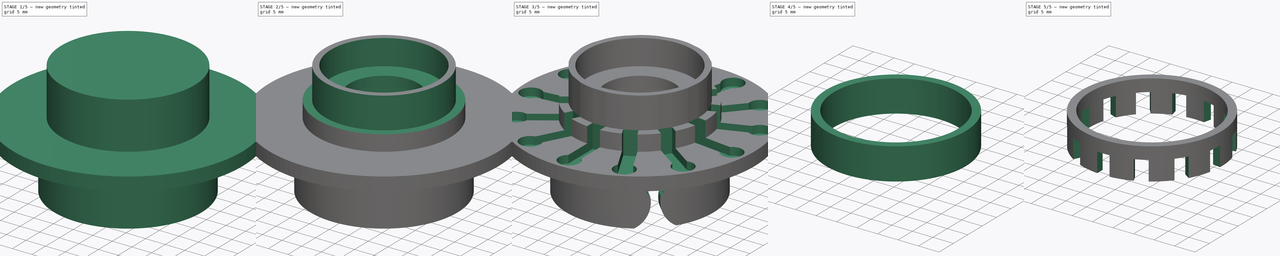
[diagram: build sequence overview — one tinted view per stage of 5, left to right]
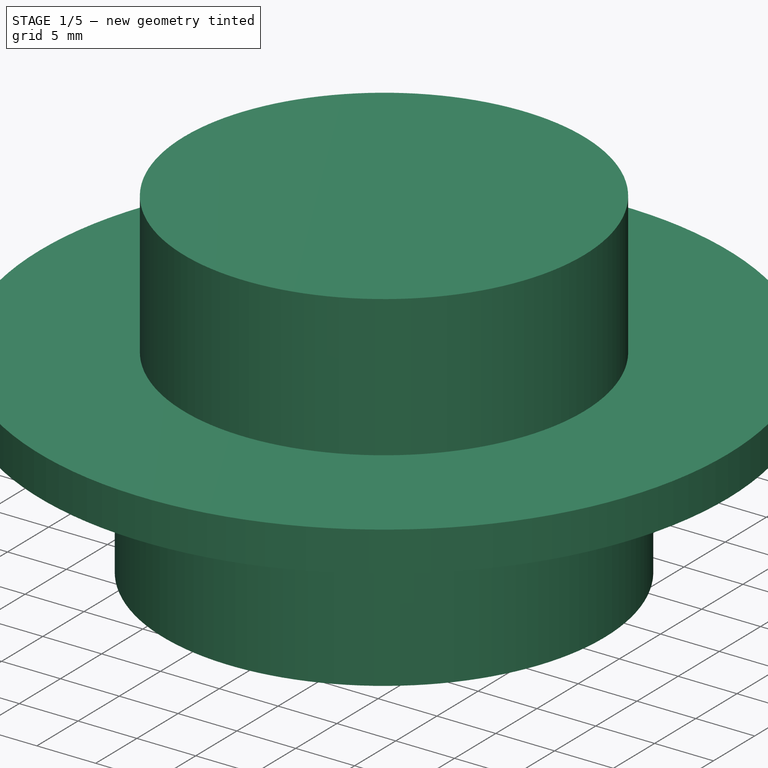
[diagram: stage 1 of 5 — iso view after this stage's code; geometry added in this stage tinted green]
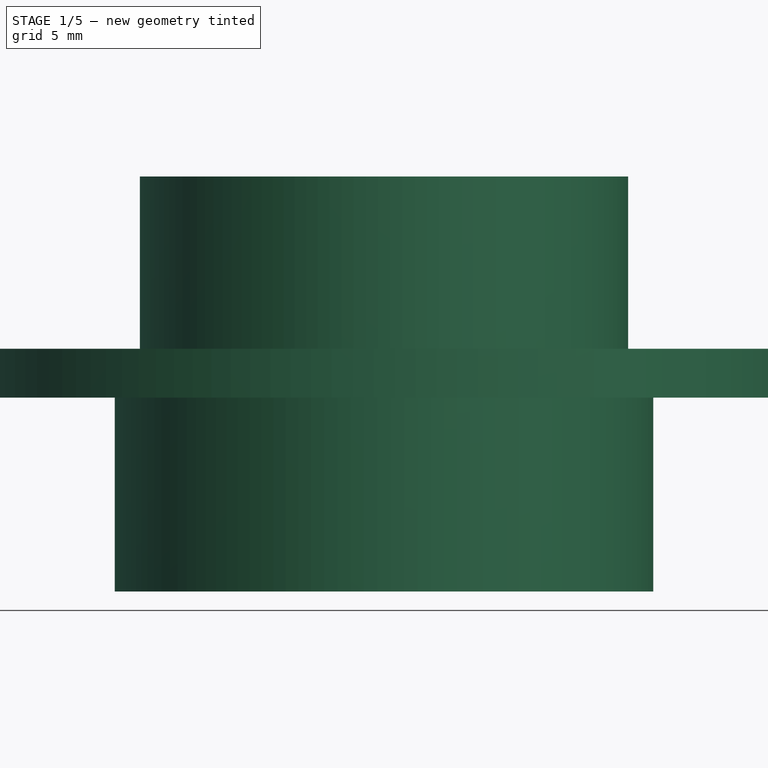
[diagram: stage 1 of 5 — front view after this stage's code; geometry added in this stage tinted green]
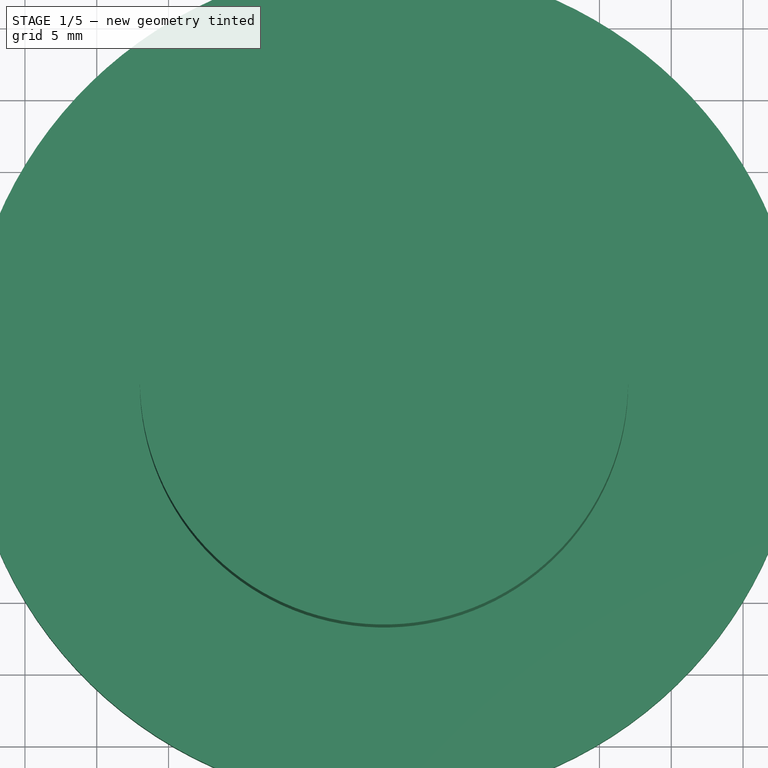
[diagram: stage 1 of 5 — top view after this stage's code; geometry added in this stage tinted green]
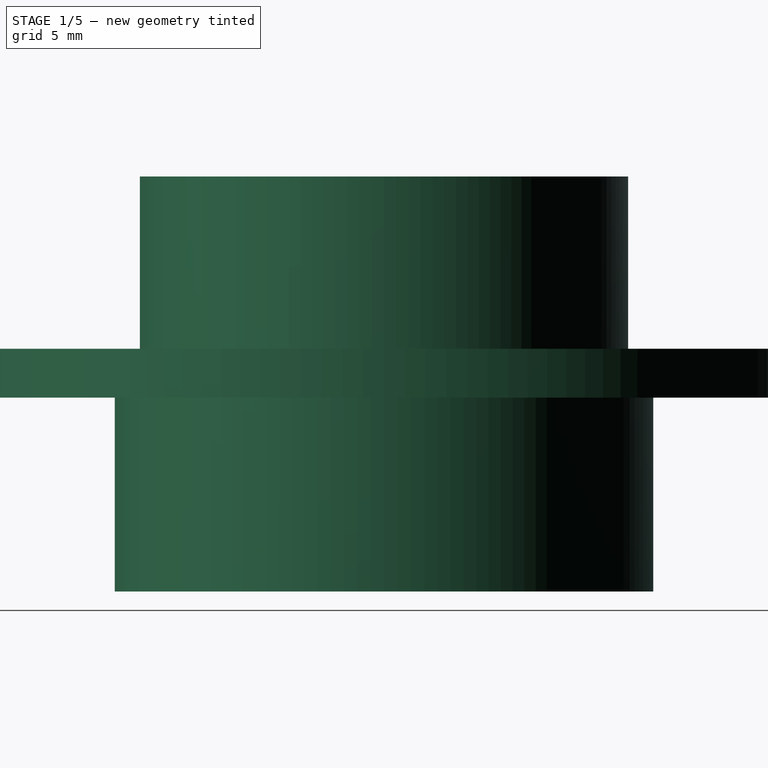
[diagram: stage 1 of 5 — right view after this stage's code; geometry added in this stage tinted green]
FCSTD DOCUMENT  (FreeCAD 0.21R33668 +26 (Git))
Label: Bremseklkoss
License: All rights reserved
LicenseURL: http://en.wikipedia.org/wiki/All_rights_reserved
objects: Sketcher::SketchObject×14, PartDesign::Pocket×10, PartDesign::Pad×5, PartDesign::PolarPattern×4, PartDesign::Body×3, PartDesign::SubShapeBinder×3, PartDesign::Plane×1
note: 55 computed .brp shape members not serialized (recipe doc carries the construction recipe); baked Part::Feature solids carry a one-line shape summary decoded from their .brp

FEATURE [Sketcher::SketchObject] Sketch
  FullyConstrained = true
  MapMode = 5
  Support = -> [XY_Plane]
  sketch-geometry (1):
    g0: Circle CenterX=0 CenterY=0 CenterZ=0 NormalX=0 NormalY=0 NormalZ=1 AngleXU=0 Radius=29.25
  constraints (2):
    c: Coincident(g0,g-1)
    c: Diameter(g0) = 58.5
FEATURE [PartDesign::Pad] Pad
  Direction = (0,0,1)
  Length = 3.4
  Length2 = 10
  Midplane = true
  Profile = -> Sketch
  ReferenceAxis = -> Sketch [N_Axis]
  Type = 0
FEATURE [Sketcher::SketchObject] Sketch001
  FullyConstrained = true
  MapMode = 5
  Placement = pos=(0,0,1.7) rot=(0,0,1;0rad)
  Support = -> [Pad]
  sketch-geometry (1):
    g0: Circle CenterX=0 CenterY=0 CenterZ=0 NormalX=0 NormalY=0 NormalZ=1 AngleXU=0 Radius=17
  constraints (2):
    c: Coincident(g0,g-1)
    c: Diameter(g0) = 34
FEATURE [PartDesign::Pad] Pad001
  BaseFeature = -> Pad
  Direction = (0,0,1)
  Length = 12
  Length2 = 10
  Profile = -> Sketch001
  ReferenceAxis = -> Sketch001 [N_Axis]
  Type = 0
FEATURE [Sketcher::SketchObject] Sketch002
  FullyConstrained = true
  MapMode = 5
  Placement = pos=(0,0,-1.7) rot=(1,0,0;3.14159rad)
  Support = -> [Pad001]
  sketch-geometry (1):
    g0: Circle CenterX=0 CenterY=0 CenterZ=0 NormalX=0 NormalY=0 NormalZ=1 AngleXU=0 Radius=18.75
  constraints (2):
    c: Coincident(g0,g-1)
    c: Diameter(g0) = 37.5
FEATURE [PartDesign::Pad] Pad002
  BaseFeature = -> Pad001
  Direction = (0,0,-1)
  Length = 13.5
  Length2 = 10
  Profile = -> Sketch002
  ReferenceAxis = -> Sketch002 [N_Axis]
  Type = 0
FEATURE [Sketcher::SketchObject] Sketch013
  FullyConstrained = true
  MapMode = 5
  Placement = pos=(0,0,-15.2) rot=(1,0,0;3.14159rad)
  Support = -> [Pad002]
  sketch-geometry (1):
    g0: Circle CenterX=0 CenterY=0 CenterZ=0 NormalX=0 NormalY=0 NormalZ=1 AngleXU=0 Radius=16.25
  constraints (2):
    c: Coincident(g0,g-1)
    c: Diameter(g0) = 32.5
FEATURE [PartDesign::Pocket] Pocket
  BaseFeature = -> Pad002
  Direction = (0,0,1)
  Length = 10.5
  Length2 = 5
  Profile = -> Sketch013
  ReferenceAxis = -> Sketch013 [N_Axis]
  Type = 0
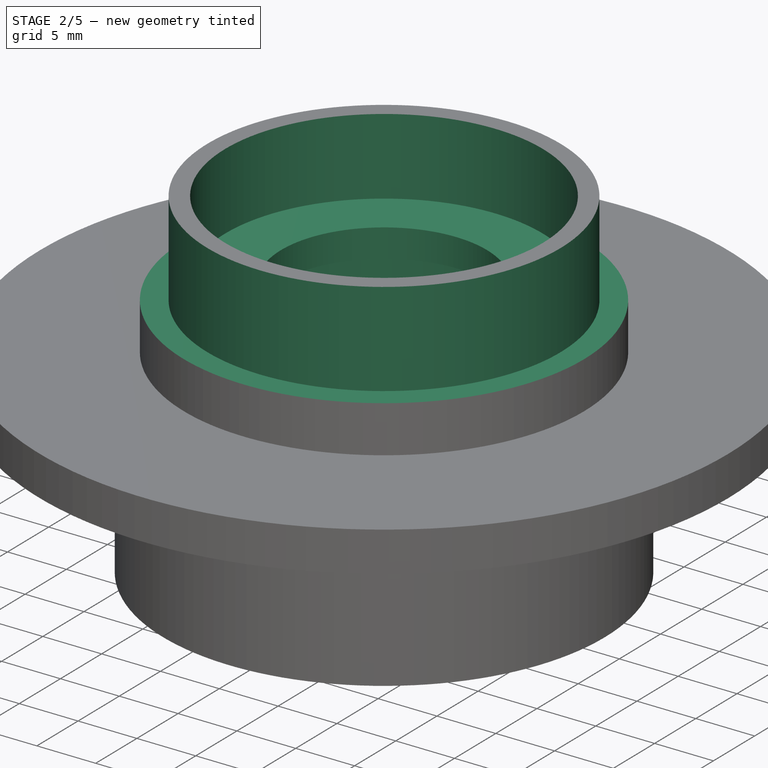
[diagram: stage 2 of 5 — iso view after this stage's code; geometry added in this stage tinted green]
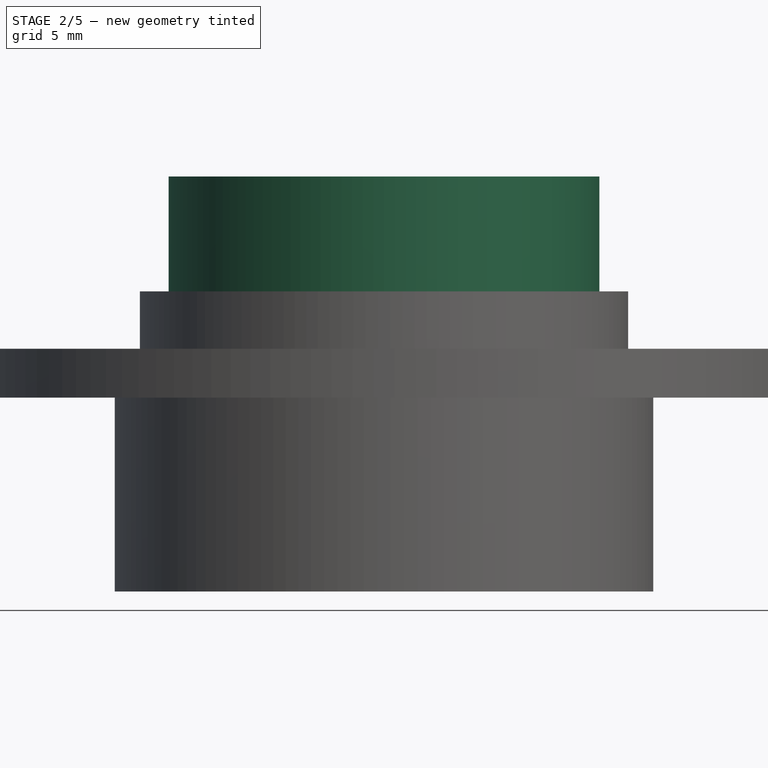
[diagram: stage 2 of 5 — front view after this stage's code; geometry added in this stage tinted green]
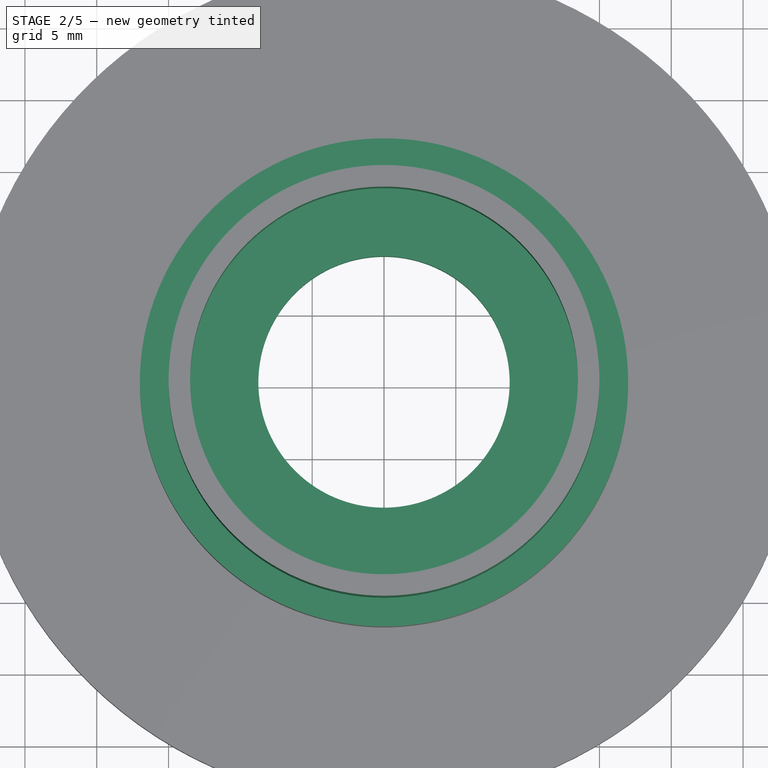
[diagram: stage 2 of 5 — top view after this stage's code; geometry added in this stage tinted green]
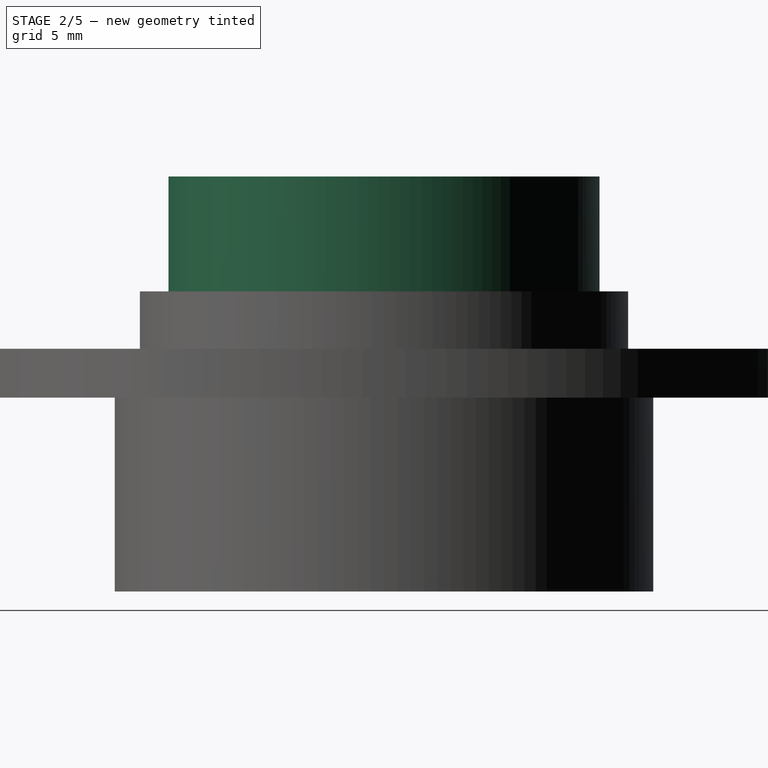
[diagram: stage 2 of 5 — right view after this stage's code; geometry added in this stage tinted green]
FEATURE [Sketcher::SketchObject] Sketch014
  FullyConstrained = true
  MapMode = 5
  Placement = pos=(0,0,-4.7) rot=(1,0,0;3.14159rad)
  Support = -> [Pocket]
  sketch-geometry (1):
    g0: Circle CenterX=0 CenterY=0 CenterZ=0 NormalX=0 NormalY=0 NormalZ=1 AngleXU=0 Radius=14.75
  constraints (2):
    c: Coincident(g0,g-1)
    c: Diameter(g0) = 29.5
FEATURE [PartDesign::Pocket] Pocket001
  BaseFeature = -> Pocket
  Direction = (0,0,1)
  Length = 9.5
  Length2 = 5
  Profile = -> Sketch014
  ReferenceAxis = -> Sketch014 [N_Axis]
  Type = 0
FEATURE [Sketcher::SketchObject] Sketch015
  FullyConstrained = true
  MapMode = 5
  Placement = pos=(0,0,13.7) rot=(0,0,1;0rad)
  Support = -> [Pocket001]
  sketch-geometry (1):
    g0: Circle CenterX=0 CenterY=0 CenterZ=0 NormalX=0 NormalY=0 NormalZ=1 AngleXU=0 Radius=13.5
  constraints (2):
    c: Coincident(g0,g-1)
    c: Diameter(g0) = 27
FEATURE [PartDesign::Pocket] Pocket002
  BaseFeature = -> Pocket001
  Direction = (0,0,-1)
  Length = 6.5
  Length2 = 5
  Profile = -> Sketch015
  ReferenceAxis = -> Sketch015 [N_Axis]
  Type = 0
FEATURE [Sketcher::SketchObject] Sketch016
  FullyConstrained = true
  MapMode = 5
  Placement = pos=(0,0,7.2) rot=(0,0,1;0rad)
  Support = -> [Pocket002]
  sketch-geometry (1):
    g0: Circle CenterX=0 CenterY=0 CenterZ=0 NormalX=0 NormalY=0 NormalZ=1 AngleXU=0 Radius=8.75
  constraints (2):
    c: Coincident(g0,g-1)
    c: Diameter(g0) = 17.5
FEATURE [PartDesign::Pocket] Pocket003
  BaseFeature = -> Pocket002
  Direction = (0,0,-1)
  Length = 5
  Length2 = 5
  Midplane = true
  Profile = -> Sketch016
  ReferenceAxis = -> Sketch016 [N_Axis]
  Refine = true
  Type = 1
FEATURE [Sketcher::SketchObject] Sketch017
  FullyConstrained = true
  MapMode = 5
  Placement = pos=(0,0,13.7) rot=(0,0,1;0rad)
  Support = -> [Pocket003]
  sketch-geometry (6):
    g0: ArcOfCircle CenterX=0 CenterY=0 CenterZ=0 NormalX=0 NormalY=0 NormalZ=1 AngleXU=0 Radius=17.5 StartAngle=1.5708 EndAngle=4.71239
    g1: ArcOfCircle CenterX=0 CenterY=0 CenterZ=0 NormalX=0 NormalY=0 NormalZ=1 AngleXU=0 Radius=17.5 StartAngle=4.71239 EndAngle=7.85398
    g2: ArcOfCircle CenterX=0 CenterY=0 CenterZ=0 NormalX=0 NormalY=0 NormalZ=1 AngleXU=0 Radius=15 StartAngle=4.71239 EndAngle=7.85398
    g3: ArcOfCircle CenterX=0 CenterY=0 CenterZ=0 NormalX=0 NormalY=0 NormalZ=1 AngleXU=0 Radius=15 StartAngle=1.5708 EndAngle=4.71239
    g4: LineSegment StartX=0 StartY=-15 StartZ=0 EndX=0 EndY=-17.5 EndZ=0
    g5: LineSegment StartX=0 StartY=15 StartZ=0 EndX=0 EndY=17.5 EndZ=0
  constraints (18):
    c: Coincident(g0,g-1)
    c: Coincident(g1,g0)
    c: Coincident(g1,g0)
    c: Coincident(g2,g0)
    c: Coincident(g3,g0)
    c: Coincident(g3,g2)
    c: Coincident(g4,g3)
    c: Coincident(g4,g0)
    c: Coincident(g5,g2)
    c: Coincident(g5,g0)
    c: Diameter(g3) = 30
    c: Diameter(g0) = 35
    c: PointOnObject(g2,g-2)
    c: PointOnObject(g0,g-2)
    c: PointOnObject(g1,g-2)
    c: PointOnObject(g2,g4)
    c: PointOnObject(g2,g-2)
    c: PointOnObject(g0,g-2)
FEATURE [PartDesign::Pocket] Pocket004
  BaseFeature = -> Pocket003
  Direction = (0,0,-1)
  Length = 8
  Length2 = 5
  Profile = -> Sketch017
  ReferenceAxis = -> Sketch017 [N_Axis]
  Type = 0
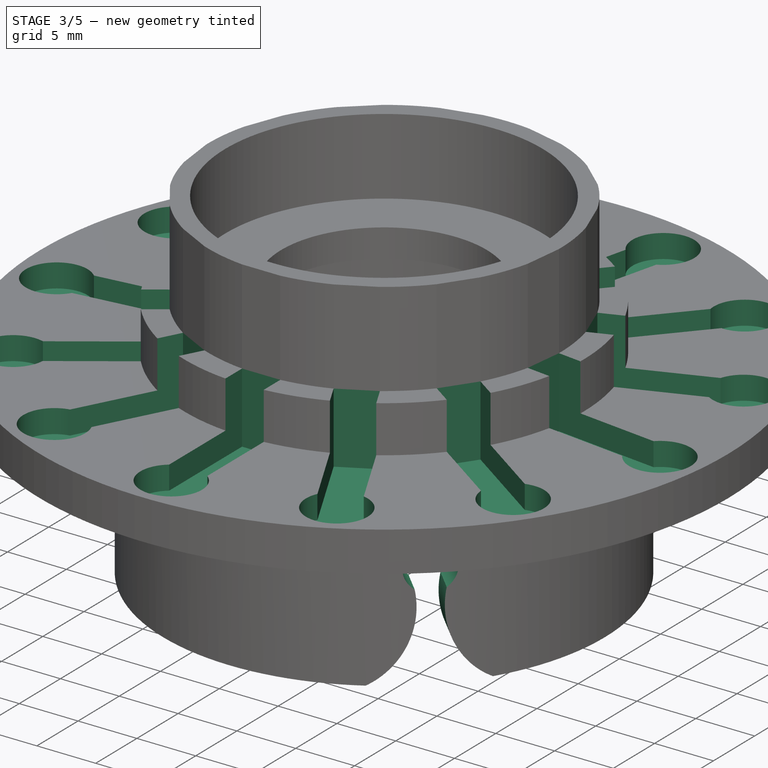
[diagram: stage 3 of 5 — iso view after this stage's code; geometry added in this stage tinted green]
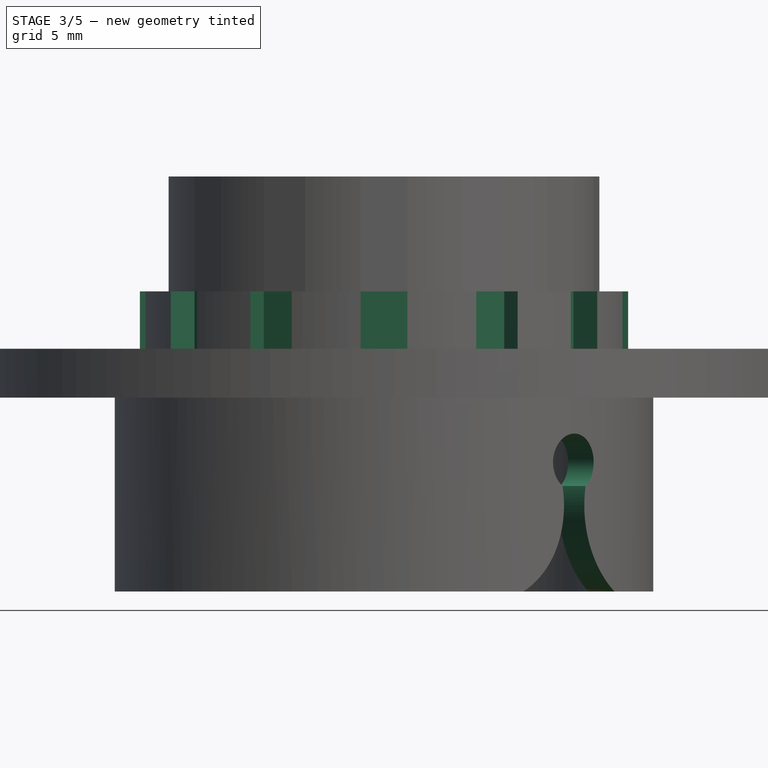
[diagram: stage 3 of 5 — front view after this stage's code; geometry added in this stage tinted green]
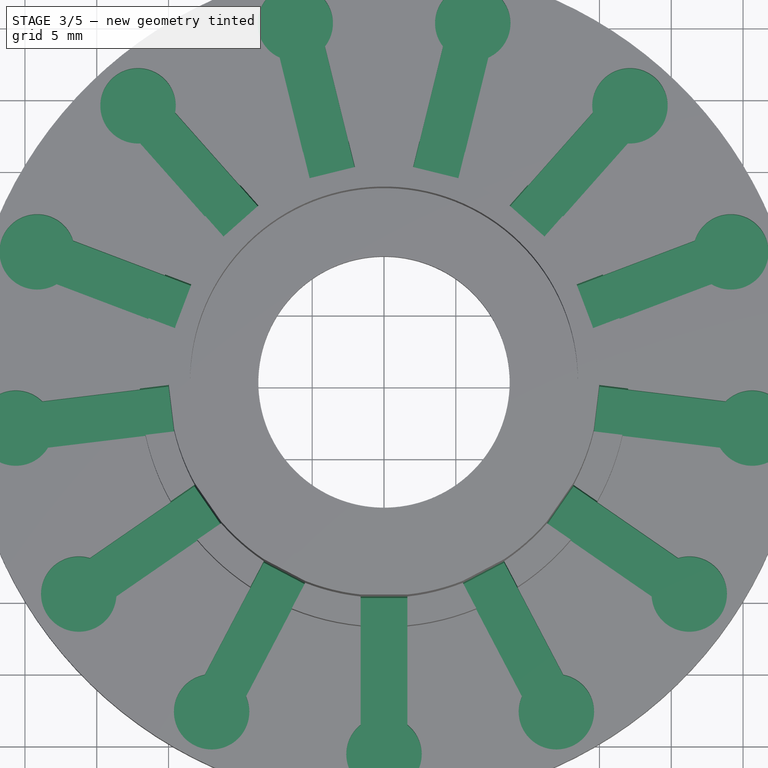
[diagram: stage 3 of 5 — top view after this stage's code; geometry added in this stage tinted green]
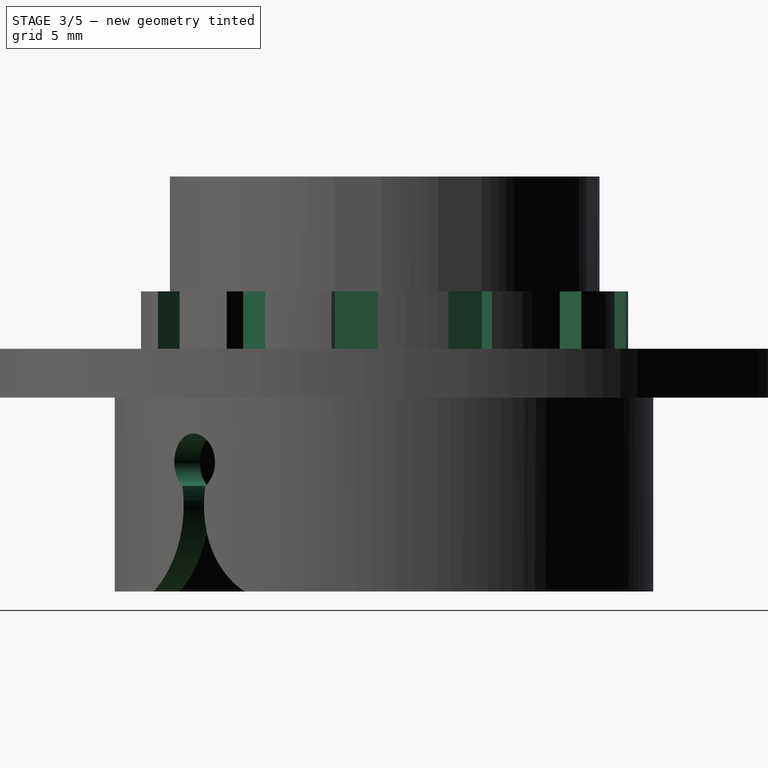
[diagram: stage 3 of 5 — right view after this stage's code; geometry added in this stage tinted green]
FEATURE [Sketcher::SketchObject] Sketch018
  ExternalGeometry = -> [Pocket004]
  FullyConstrained = true
  MapMode = 5
  Placement = pos=(0,0,1.7) rot=(0,0,1;0rad)
  Support = -> [Pocket004]
  sketch-geometry (7):
    g0: ArcOfCircle CenterX=0 CenterY=-25.825 CenterZ=0 NormalX=0 NormalY=0 NormalZ=1 AngleXU=0 Radius=2.625 StartAngle=2.23833 EndAngle=7.18645
    g1: LineSegment StartX=1.625 StartY=-14.9117 StartZ=0 EndX=1.625 EndY=-23.7634 EndZ=0
    g2: LineSegment StartX=1.625 StartY=-23.7634 StartZ=0 EndX=-1.625 EndY=-23.7634 EndZ=0
    g3: LineSegment StartX=-1.625 StartY=-23.7634 StartZ=0 EndX=-1.625 EndY=-14.9117 EndZ=0
    g4: LineSegment StartX=-1.625 StartY=-14.9117 StartZ=0 EndX=1.625 EndY=-14.9117 EndZ=0
    g5: GeomPoint X=0 Y=-19.3376 Z=0
    g6: LineSegment StartX=0 StartY=-28.45 StartZ=0 EndX=0 EndY=-29.25 EndZ=0
  constraints (22):
    c: PointOnObject(g0,g-2)
    c: Coincident(g1,g2)
    c: Coincident(g2,g3)
    c: Coincident(g3,g4)
    c: Coincident(g4,g1)
    c: Horizontal(g2)
    c: Horizontal(g4)
    c: Vertical(g1)
    c: Vertical(g3)
    c: Symmetric(g2,g1,g5)
    c: PointOnObject(g5,g-2)
    c: PointOnObject(g0,g2)
    c: PointOnObject(g0,g3)
    c: PointOnObject(g0,g2)
    c: Distance(g2) = 3.25
    c: PointOnObject(g6,g0)
    c: PointOnObject(g6,g-3)
    c: Perpendicular(g-3,g6)
    c: Perpendicular(g0,g6)
    c: Distance(g6) = 0.8
    c: Diameter(g0) = 5.25
    c: PointOnObject(g1,g-4)
FEATURE [PartDesign::Pocket] Pocket005
  BaseFeature = -> Pocket004
  Direction = (0,0,-1)
  Length = 2
  Length2 = 14
  Profile = -> Sketch018
  ReferenceAxis = -> Sketch018 [N_Axis]
  Type = 4
FEATURE [PartDesign::PolarPattern] PolarPattern
  Angle = 360
  Axis = -> Sketch018 [N_Axis]
  BaseFeature = -> Pocket005
  Occurrences = 13
  Originals = -> [Pocket005]
FEATURE [PartDesign::Plane] DatumPlane002
  AttachmentOffset = pos=(0,0,-15.2) rot=(-0.862856,-0.357407,0.357407;1.71777rad)
  Length = 95.4601
  MapMode = 5
  Placement = pos=(0,0,-15.2) rot=(-0.862856,-0.357407,0.357407;1.71777rad)
  ResizeMode = 0
  Support = -> [XY_Plane]
  Width = 62.8535
FEATURE [Sketcher::SketchObject] Sketch020
  FullyConstrained = true
  MapMode = 5
  Placement = pos=(0,0,-15.2) rot=(-0.862856,-0.357407,0.357407;1.71777rad)
  Support = -> [DatumPlane002]
  sketch-geometry (11):
    g0: LineSegment StartX=0 StartY=0 StartZ=0 EndX=0 EndY=-11 EndZ=0
    g1: Circle CenterX=0 CenterY=-9 CenterZ=0 NormalX=0 NormalY=0 NormalZ=1 AngleXU=0 Radius=2
    g2: ArcOfCircle CenterX=0 CenterY=-9 CenterZ=0 NormalX=0 NormalY=0 NormalZ=1 AngleXU=0 Radius=2 StartAngle=2.17366 EndAngle=7.25112
    g3: ArcOfCircle CenterX=7.89286 CenterY=-6 CenterZ=0 NormalX=0 NormalY=0 NormalZ=1 AngleXU=0 Radius=6.89286 StartAngle=2.08544 EndAngle=3.3391
    g4: ArcOfCircle CenterX=-7.89286 CenterY=-6 CenterZ=0 NormalX=0 NormalY=0 NormalZ=1 AngleXU=0 Radius=6.89286 StartAngle=6.08568 EndAngle=7.33933
    g5: LineSegment StartX=4.5 StartY=-9e-16 StartZ=0 EndX=0 EndY=-9e-16 EndZ=0
    g6: LineSegment StartX=0 StartY=-9e-16 StartZ=0 EndX=-4.5 EndY=-9e-16 EndZ=0
    g7: LineSegment StartX=-1 StartY=-6 StartZ=0 EndX=1 EndY=-6 EndZ=0
    g8: LineSegment StartX=-4.5 StartY=-9e-16 StartZ=0 EndX=-4.5 EndY=2 EndZ=0
    g9: LineSegment StartX=-4.5 StartY=2 StartZ=0 EndX=4.5 EndY=2 EndZ=0
    g10: LineSegment StartX=4.5 StartY=2 StartZ=0 EndX=4.5 EndY=-9e-16 EndZ=0
  constraints (36):
    c: Vertical(g0)
    c: PointOnObject(g1,g-2)
    c: Coincident(g2,g1)
    c: PointOnObject(g2,g1)
    c: Horizontal(g2,g2)
    c: PointOnObject(g0,g2)
    c: Perpendicular(g2,g0)
    c: Coincident(g3,g2)
    c: Coincident(g4,g2)
    c: Equal(g4,g3)
    c: Coincident(g5,g3)
    c: PointOnObject(g5,g-2)
    c: Coincident(g6,g5)
    c: Coincident(g6,g4)
    c: Horizontal(g6)
    c: Equal(g5,g6)
    c: PointOnObject(g7,g4)
    c: PointOnObject(g7,g3)
    c: Horizontal(g7)
    c: Diameter(g1) = 4
    c: Distance(g7) = 2
    c: Perpendicular(g3,g7)
    c: Distance(g0) = 11
    c: Distance(g3,g4) = 9
    c: Distance(g7,g5) = 6
    c: Coincident(g8,g4)
    c: Vertical(g8)
    c: Coincident(g8,g9)
    c: Horizontal(g9)
    c: Coincident(g9,g10)
    c: Coincident(g10,g3)
    c: Vertical(g10)
    c: Distance(g8) = 2
    c: Horizontal(g5)
    c: PointOnObject(g0,g6)
    c: PointOnObject(g4,g-1)
FEATURE [PartDesign::Pocket] Pocket006
  BaseFeature = -> PolarPattern
  Direction = (0.707107,-0.707107,0)
  Length = 5
  Length2 = 5
  Profile = -> Sketch020
  ReferenceAxis = -> Sketch020 [N_Axis]
  Type = 1
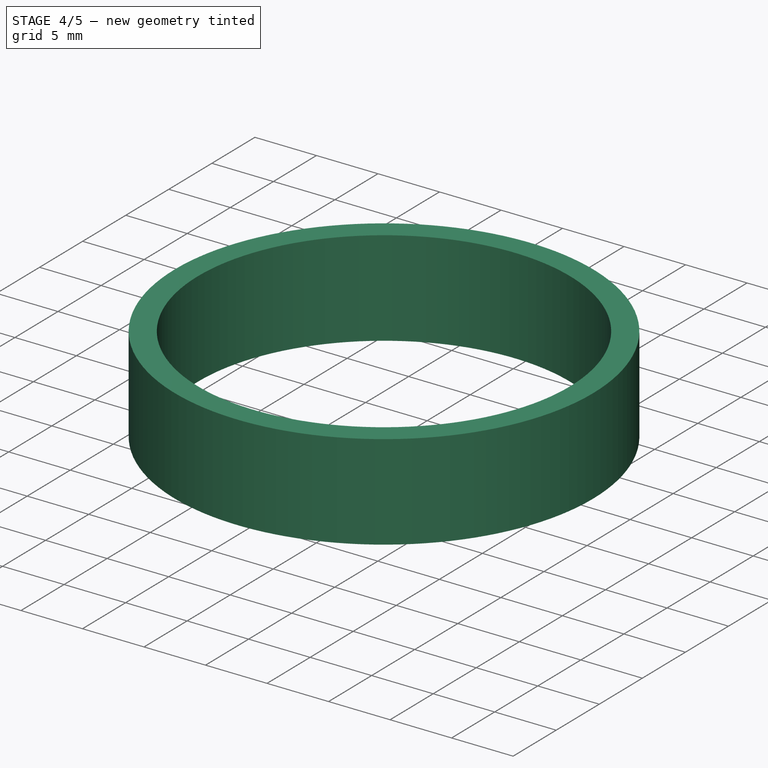
[diagram: stage 4 of 5 — iso view after this stage's code; geometry added in this stage tinted green]
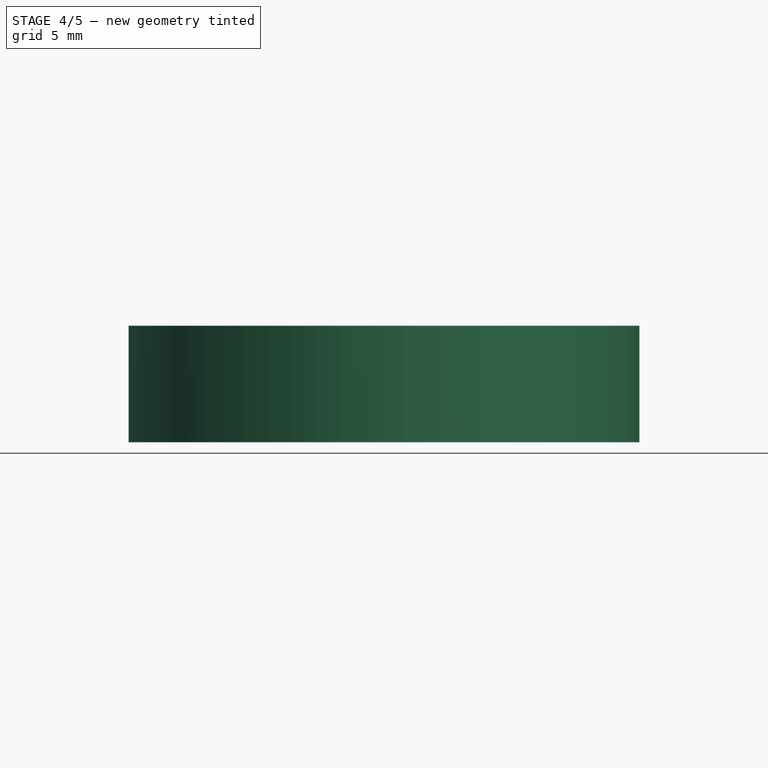
[diagram: stage 4 of 5 — front view after this stage's code; geometry added in this stage tinted green]
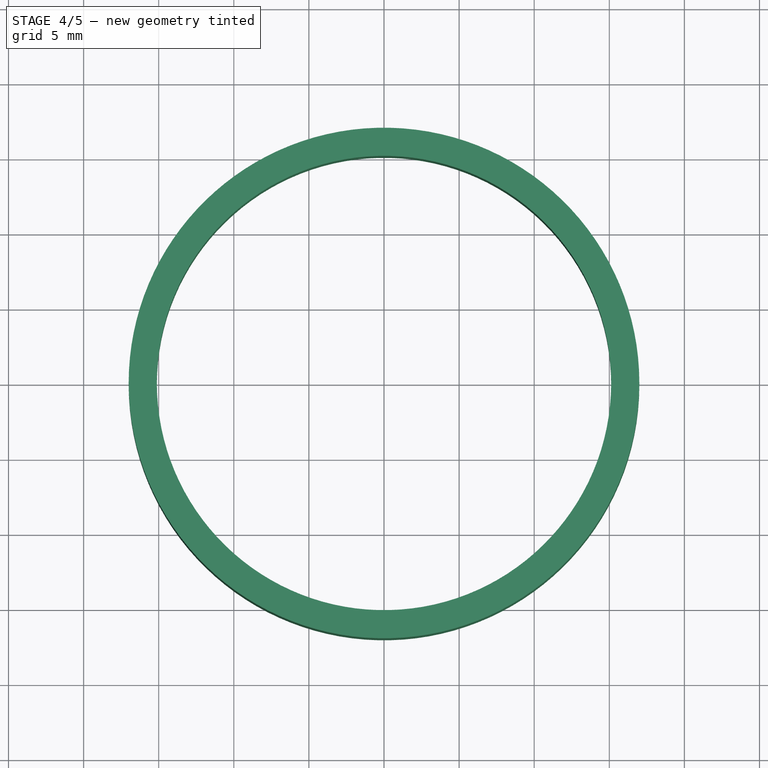
[diagram: stage 4 of 5 — top view after this stage's code; geometry added in this stage tinted green]
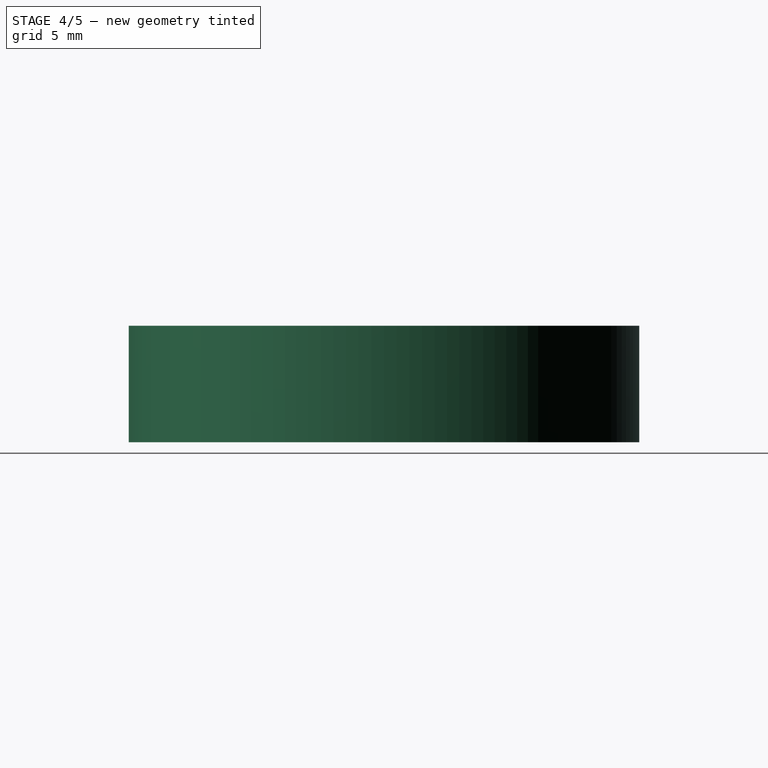
[diagram: stage 4 of 5 — right view after this stage's code; geometry added in this stage tinted green]
FEATURE [PartDesign::PolarPattern] PolarPattern001
  Angle = 360
  Axis = -> Z_Axis
  BaseFeature = -> Pocket006
  Occurrences = 4
  Originals = -> [Pocket006]
FEATURE [Sketcher::SketchObject] Sketch021
  ExternalGeometry = -> [PolarPattern001]
  FullyConstrained = true
  MapMode = 5
  Placement = pos=(0,0,0) rot=(1,0,0;1.5708rad)
  Support = -> [XZ_Plane]
  sketch-geometry (5):
    g0: LineSegment StartX=4 StartY=-5.2 StartZ=0 EndX=4 EndY=-15.2 EndZ=0
    g1: LineSegment StartX=4 StartY=-15.2 StartZ=0 EndX=-4 EndY=-15.2 EndZ=0
    g2: LineSegment StartX=-4 StartY=-15.2 StartZ=0 EndX=-4 EndY=-5.2 EndZ=0
    g3: LineSegment StartX=-4 StartY=-5.2 StartZ=0 EndX=4 EndY=-5.2 EndZ=0
    g4: GeomPoint X=0 Y=-10.2 Z=0
  constraints (13):
    c: Coincident(g0,g1)
    c: Coincident(g1,g2)
    c: Coincident(g2,g3)
    c: Coincident(g3,g0)
    c: Horizontal(g1)
    c: Horizontal(g3)
    c: Vertical(g0)
    c: Vertical(g2)
    c: Symmetric(g1,g0,g4)
    c: PointOnObject(g4,g-2)
    c: PointOnObject(g1,g-3)
    c: Distance(g0) = 10
    c: Distance(g1) = 8
FEATURE [PartDesign::Pocket] Pocket007
  BaseFeature = -> PolarPattern001
  Direction = (0,1,2e-16)
  Length = 5
  Length2 = 5
  Profile = -> Sketch021
  ReferenceAxis = -> Sketch021 [N_Axis]
  Type = 1
FEATURE [PartDesign::PolarPattern] PolarPattern002
  Angle = 360
  Axis = -> Z_Axis
  BaseFeature = -> Pocket007
  Occurrences = 4
  Originals = -> [Pocket007]
FEATURE [PartDesign::Body] Body001  label="tapp"
  Group = -> [Binder,Sketch022,Pad003,Sketch023,Pocket008]
  Origin = -> Origin001
  Tip = -> Pocket008
FEATURE [PartDesign::SubShapeBinder] Binder001
  BindCopyOnChange = 0
  BindMode = 0
  ClaimChildren = false
  Context = -> Body002 [Binder001.]
  Fuse = false
  MakeFace = true
  OffsetFill = false
  OffsetIntersection = false
  OffsetJoinType = 0
  OffsetOpenResult = false
  PartialLoad = false
  Relative = true
  Support = -> [Body[PolarPattern002.Face105,PolarPattern002.Face140,PolarPattern002.Face126,PolarPattern002.Face123]]
  _Version = 2
FEATURE [PartDesign::SubShapeBinder] Binder002
  BindCopyOnChange = 0
  BindMode = 0
  ClaimChildren = false
  Context = -> Body002 [Binder002.]
  Fuse = false
  MakeFace = true
  OffsetFill = false
  OffsetIntersection = false
  OffsetJoinType = 0
  OffsetOpenResult = false
  PartialLoad = false
  Relative = true
  Support = -> [Body001[Pocket008.Face4,Pocket008.Face7]]
  _Version = 2
FEATURE [Sketcher::SketchObject] Sketch024
  ExternalGeometry = -> [Binder001]
  FullyConstrained = false
  MapMode = 5
  Placement = pos=(0,0,13.7) rot=(0,0,1;0rad)
  Support = -> [Binder001]
  sketch-geometry (6):
    g0: ArcOfCircle CenterX=0 CenterY=0 CenterZ=0 NormalX=0 NormalY=0 NormalZ=1 AngleXU=0 Radius=17 StartAngle=0 EndAngle=3.14159
    g1: ArcOfCircle CenterX=0 CenterY=0 CenterZ=0 NormalX=0 NormalY=0 NormalZ=1 AngleXU=0 Radius=17 StartAngle=3.14159 EndAngle=6.28319
    g2: ArcOfCircle CenterX=0 CenterY=0 CenterZ=0 NormalX=0 NormalY=0 NormalZ=1 AngleXU=0 Radius=15.125 StartAngle=0 EndAngle=3.14159
    g3: ArcOfCircle CenterX=0 CenterY=0 CenterZ=0 NormalX=0 NormalY=0 NormalZ=1 AngleXU=0 Radius=15.125 StartAngle=3.14159 EndAngle=6.28319
    g4: LineSegment StartX=-15.125 StartY=0 StartZ=0 EndX=-17 EndY=0 EndZ=0
    g5: LineSegment StartX=-3.17584 StartY=-14.6599 StartZ=0 EndX=-3.20231 EndY=-14.7821 EndZ=0
  constraints (19):
    c: Coincident(g0,g-4)
    c: Coincident(g1,g0)
    c: Coincident(g1,g0)
    c: Coincident(g2,g0)
    c: Coincident(g3,g0)
    c: Coincident(g3,g2)
    c: PointOnObject(g2,g-1)
    c: PointOnObject(g3,g-1)
    c: PointOnObject(g2,g-1)
    c: Coincident(g4,g2)
    c: Coincident(g4,g0)
    c: Horizontal(g4)
    c: PointOnObject(g5,g-3)
    c: PointOnObject(g5,g3)
    c: Perpendicular(g-3,g5)
    c: Distance(g5) = 0.125
    c: Distance(g4) = 1.875
    c: PointOnObject(g0,g-1)
    c: PointOnObject(g1,g-1)
FEATURE [PartDesign::Pad] Pad004
  Direction = (0,0,1)
  Length = 7.75
  Length2 = 10
  Profile = -> Sketch024
  ReferenceAxis = -> Sketch024 [N_Axis]
  Reversed = true
  Type = 0
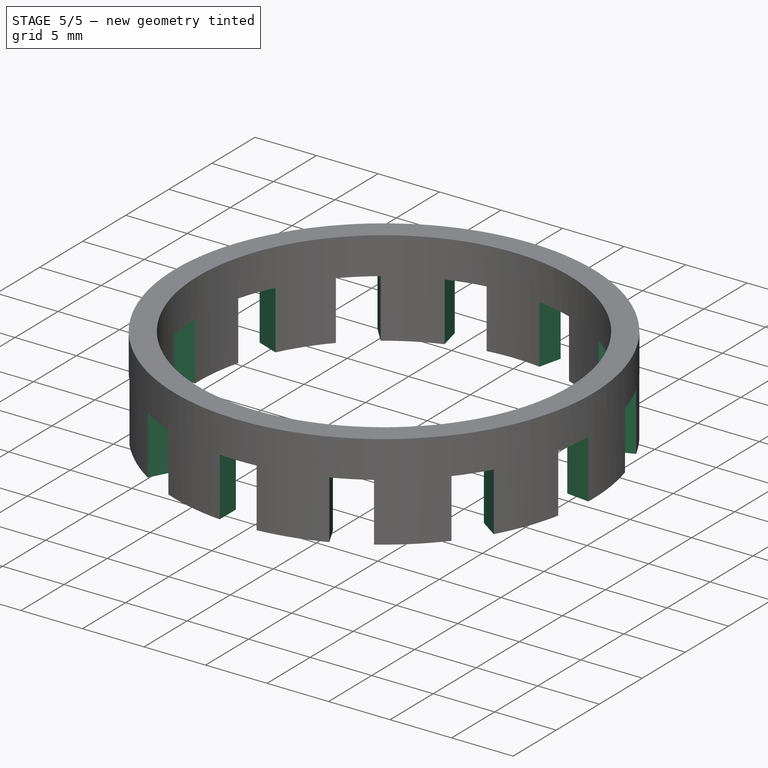
[diagram: stage 5 of 5 — iso view after this stage's code; geometry added in this stage tinted green]
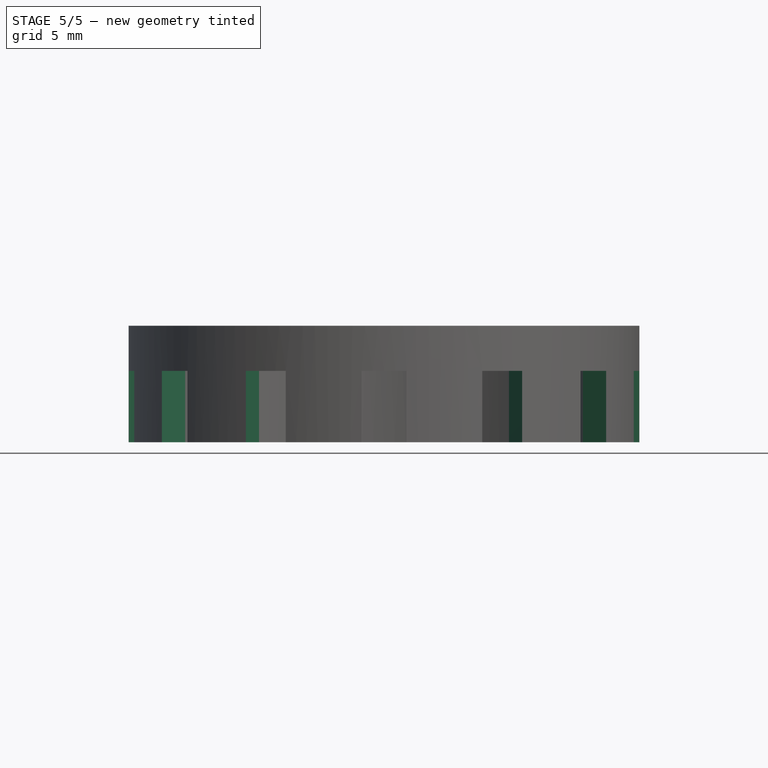
[diagram: stage 5 of 5 — front view after this stage's code; geometry added in this stage tinted green]
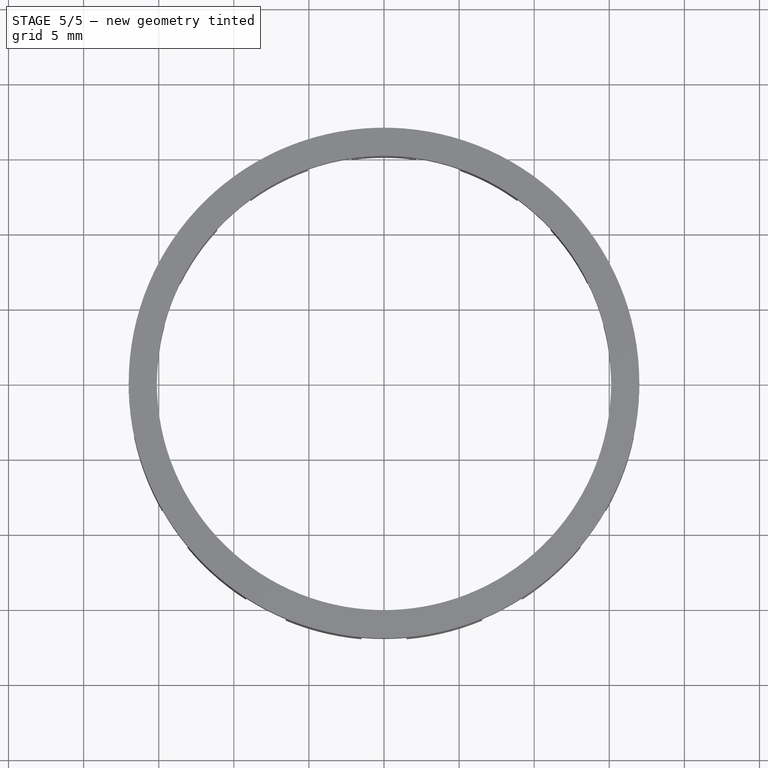
[diagram: stage 5 of 5 — top view after this stage's code; geometry added in this stage tinted green]
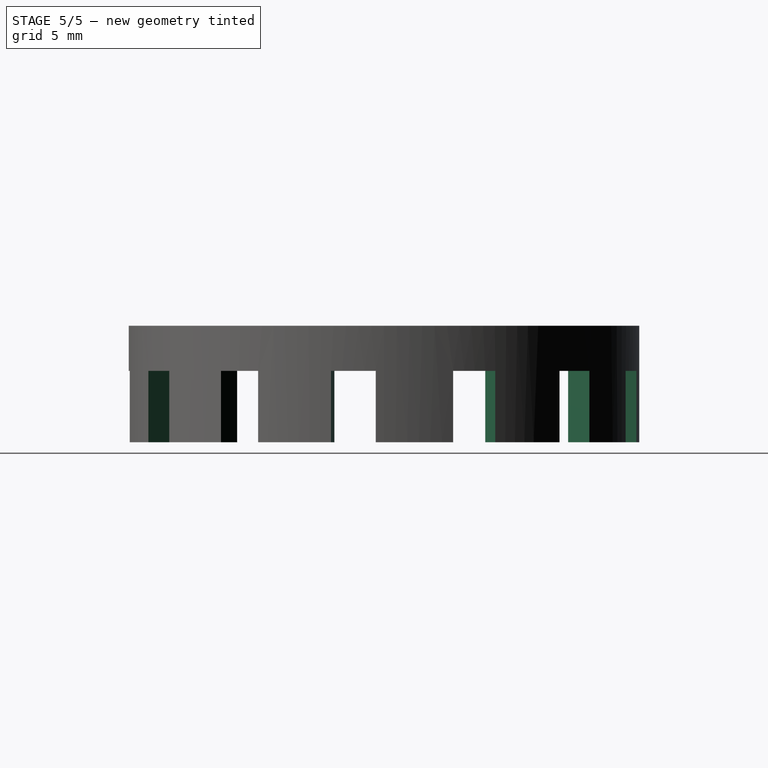
[diagram: stage 5 of 5 — right view after this stage's code; geometry added in this stage tinted green]
FEATURE [PartDesign::Body] Body
  Group = -> [Sketch,Pad,Sketch001,Pad001,Sketch002,Pad002,Sketch013,Pocket,Sketch014,Pocket001,Sketch015,Pocket002,Sketch016,Pocket003,Sketch017,Pocket004,Sketch018,Pocket005,PolarPattern,DatumPlane002,Sketch020,Pocket006,PolarPattern001,Sketch021,Pocket007,PolarPattern002]
  Origin = -> Origin
  Tip = -> PolarPattern002
FEATURE [PartDesign::SubShapeBinder] Binder
  BindCopyOnChange = 0
  BindMode = 0
  ClaimChildren = false
  Context = -> Body001 [Binder.]
  Fuse = false
  MakeFace = true
  OffsetFill = false
  OffsetIntersection = false
  OffsetJoinType = 0
  OffsetOpenResult = false
  PartialLoad = false
  Relative = true
  Support = -> [Body[PolarPattern002.Face119,PolarPattern002.Face140]]
  _Version = 2
FEATURE [Sketcher::SketchObject] Sketch022
  ExternalGeometry = -> [Binder]
  FullyConstrained = true
  MapMode = 5
  Placement = pos=(0,0,-0.3) rot=(0,0,1;0rad)
  Support = -> [Binder]
  sketch-geometry (6):
    g0: LineSegment StartX=-1.5 StartY=-15.0367 StartZ=0 EndX=1.5 EndY=-15.0367 EndZ=0
    g1: LineSegment StartX=1.5 StartY=-15.0367 StartZ=0 EndX=1.5 EndY=-23.8884 EndZ=0
    g2: LineSegment StartX=-1.5 StartY=-15.0367 StartZ=0 EndX=-1.5 EndY=-23.8884 EndZ=0
    g3: ArcOfCircle CenterX=0 CenterY=-25.825 CenterZ=0 NormalX=0 NormalY=0 NormalZ=1 AngleXU=0 Radius=2.44954 StartAngle=2.22984 EndAngle=7.19494
    g4: ArcOfCircle CenterX=0 CenterY=-25.825 CenterZ=0 NormalX=0 NormalY=0 NormalZ=1 AngleXU=0 Radius=2.44954 StartAngle=4.05335 EndAngle=7.19494
    g5: LineSegment StartX=-1.5 StartY=-27.7616 StartZ=0 EndX=-1.5 EndY=-23.8884 EndZ=0
  constraints (17):
    c: Horizontal(g0)
    c: Coincident(g0,g1)
    c: Vertical(g1)
    c: Coincident(g0,g2)
    c: Vertical(g2)
    c: Horizontal(g1,g2)
    c: Coincident(g3,g2)
    c: Coincident(g3,g1)
    c: Coincident(g3,g-3)
    c: Distance(g-4,g1) = 0.125
    c: Distance(g-4,g0) = 0.125
    c: DistanceY(g2,g-5) = 0.125
    c: Coincident(g4,g3)
    c: Coincident(g4,g1)
    c: Coincident(g5,g4)
    c: Coincident(g5,g2)
    c: Vertical(g5)
FEATURE [PartDesign::Pad] Pad003
  Direction = (0,0,1)
  Length = 14
  Length2 = 10
  Profile = -> Sketch022
  ReferenceAxis = -> Sketch022 [N_Axis]
  Refine = true
  Type = 0
FEATURE [Sketcher::SketchObject] Sketch023
  ExternalGeometry = -> [Pad003]
  FullyConstrained = true
  MapMode = 5
  Placement = pos=(0,0,13.7) rot=(0,0,1;0rad)
  Support = -> [Pad003]
  sketch-geometry (5):
    g0: LineSegment StartX=1.5 StartY=-17.1617 StartZ=0 EndX=1.5 EndY=-15.0367 EndZ=0
    g1: LineSegment StartX=1.5 StartY=-15.0367 StartZ=0 EndX=-1.5 EndY=-15.0367 EndZ=0
    g2: LineSegment StartX=-1.5 StartY=-15.0367 StartZ=0 EndX=-1.5 EndY=-17.1617 EndZ=0
    g3: LineSegment StartX=-1.5 StartY=-17.1617 StartZ=0 EndX=1.5 EndY=-17.1617 EndZ=0
    g4: GeomPoint X=0 Y=-16.0992 Z=0
  constraints (12):
    c: Coincident(g0,g1)
    c: Coincident(g1,g2)
    c: Coincident(g2,g3)
    c: Coincident(g3,g0)
    c: Horizontal(g1)
    c: Horizontal(g3)
    c: Vertical(g0)
    c: Vertical(g2)
    c: Symmetric(g1,g0,g4)
    c: PointOnObject(g4,g-2)
    c: Coincident(g1,g-3)
    c: Distance(g2) = 2.125
FEATURE [PartDesign::Pocket] Pocket008
  BaseFeature = -> Pad003
  Direction = (0,0,-1)
  Length = 3
  Length2 = 5
  Profile = -> Sketch023
  ReferenceAxis = -> Sketch023 [N_Axis]
  Type = 0
FEATURE [PartDesign::Pocket] Pocket009
  BaseFeature = -> Pad004
  Direction = (0,0,-1)
  Length = 5
  Length2 = 5
  Profile = -> Binder002 [Face1]
  Type = 1
FEATURE [PartDesign::PolarPattern] PolarPattern003
  Angle = 360
  Axis = -> Z_Axis002
  BaseFeature = -> Pocket009
  Occurrences = 13
  Originals = -> [Pocket009]
FEATURE [PartDesign::Body] Body002  label="ring"
  Group = -> [Binder001,Binder002,Sketch024,Pad004,Pocket009,PolarPattern003]
  Origin = -> Origin002
  Tip = -> PolarPattern003
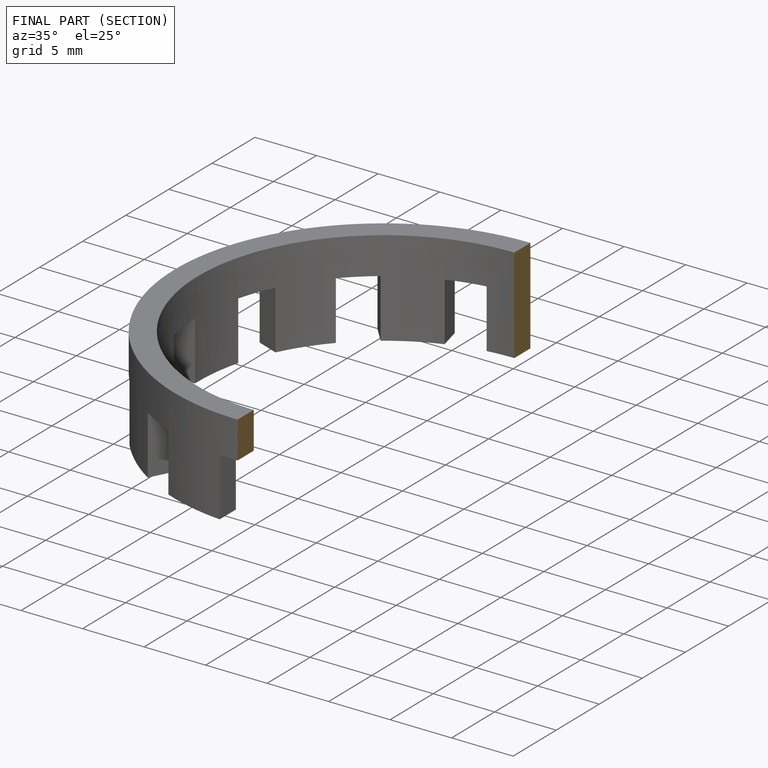
[diagram: finished part — half-section view (interior)]
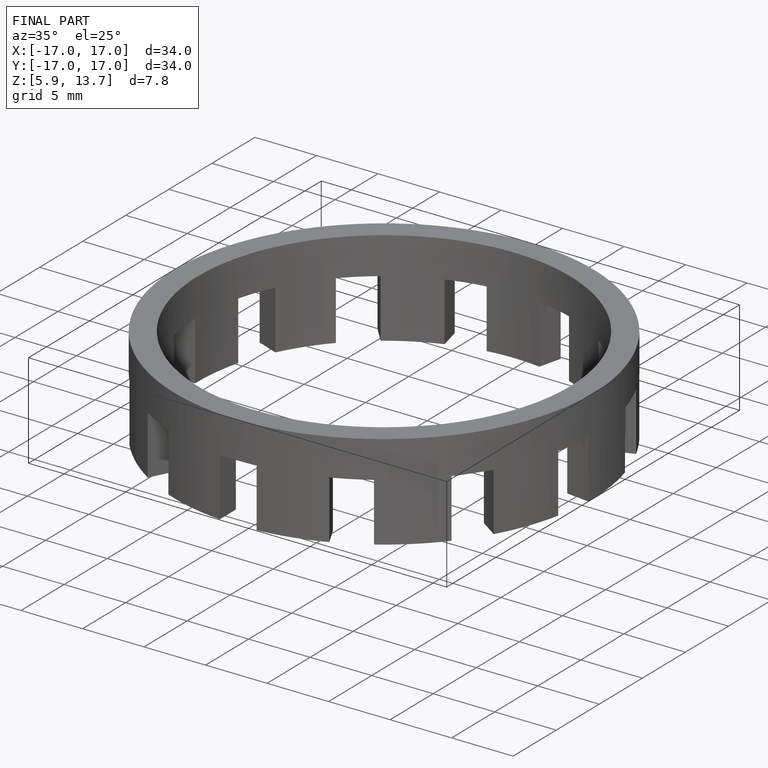
[diagram: finished part — iso view with bounding-box wireframe]
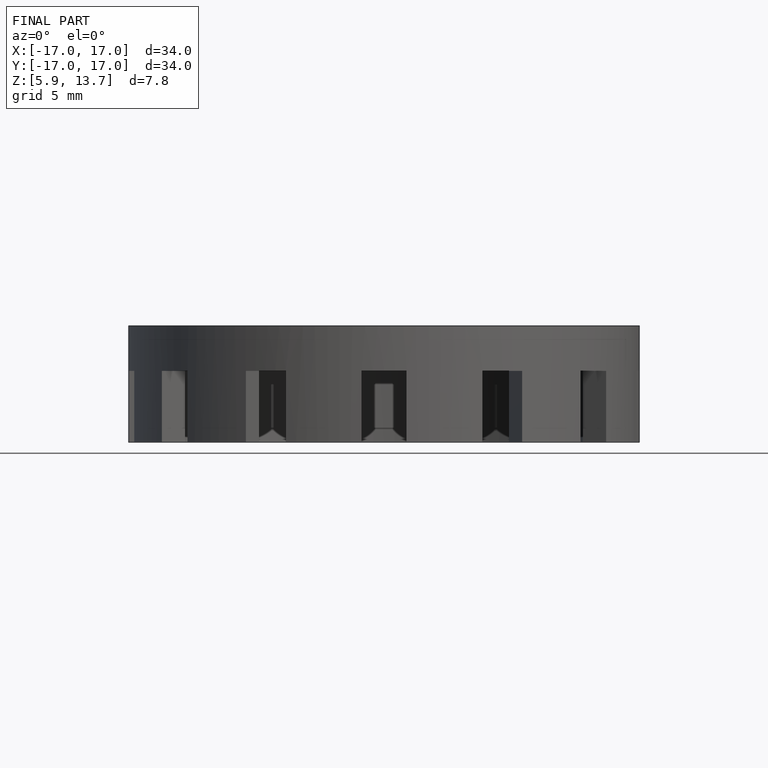
[diagram: finished part — front view with bounding-box wireframe]
